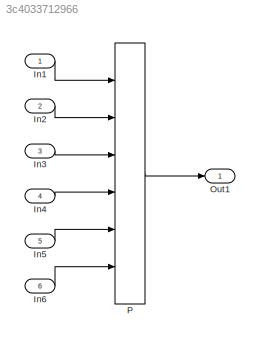
MODEL slx_3c4033712966
KIND model
CONFIG AbsTol = auto
CONFIG EnableMultiTasking = off
CONFIG FixedStep = auto
CONFIG MaxStep = auto
CONFIG MinStep = auto
CONFIG RelTol = 1e-3
CONFIG SampleTimeConstraint = Unconstrained
CONFIG Solver = FixedStepDiscrete
CONFIG SolverName = FixedStepDiscrete
CONFIG StartTime = 0.0
CONFIG StopTime = 10.0
BLOCK [Inport] In1
  IconDisplay = Port number
  OutMax = 2
  OutMin = 0
  PortDimensions = 1
BLOCK [Inport] In2
  IconDisplay = Port number
  OutMax = 1.5
  OutMin = -0.5
  Port = 2
BLOCK [Inport] In3
  IconDisplay = Port number
  OutMax = 5
  OutMin = 0
  Port = 3
BLOCK [Inport] In4
  IconDisplay = Port number
  OutMax = 1.5
  OutMin = -0.5
  Port = 4
BLOCK [Inport] In5
  IconDisplay = Port number
  OutMax = 3
  Port = 5
BLOCK [Inport] In6
  IconDisplay = Port number
  OutMax = 2
  OutMin = 0
  Port = 6
BLOCK [Outport] Out1
  IconDisplay = Port number
BLOCK [Interpolation_n-D] P
  InputPortMap = u0,u1,u2,u3,u4,u5
  IntermediateResultsDataTypeStr = single
  InternalRulePriority = Speed
  InterpMethod = Flat
  NumSelectionDims = 2
  NumberOfTableDimensions = 4
  OutDataTypeStr = uint16
  Ports = [6, 1]
  RndMeth = Convergent
  SaturateOnIntegerOverflow = on
  Table = reshape(repmat([4 5 6 7 8;16 19 20 21 22;10 18 23 24 25],2,2),[2,5,3,2])
  ValidIndexMayReachLast = on
LINE In1:1 -> P:1
LINE In2:1 -> P:2
LINE In3:1 -> P:3
LINE In4:1 -> P:4
LINE In5:1 -> P:5
LINE In6:1 -> P:6
LINE P:1 -> Out1:1
